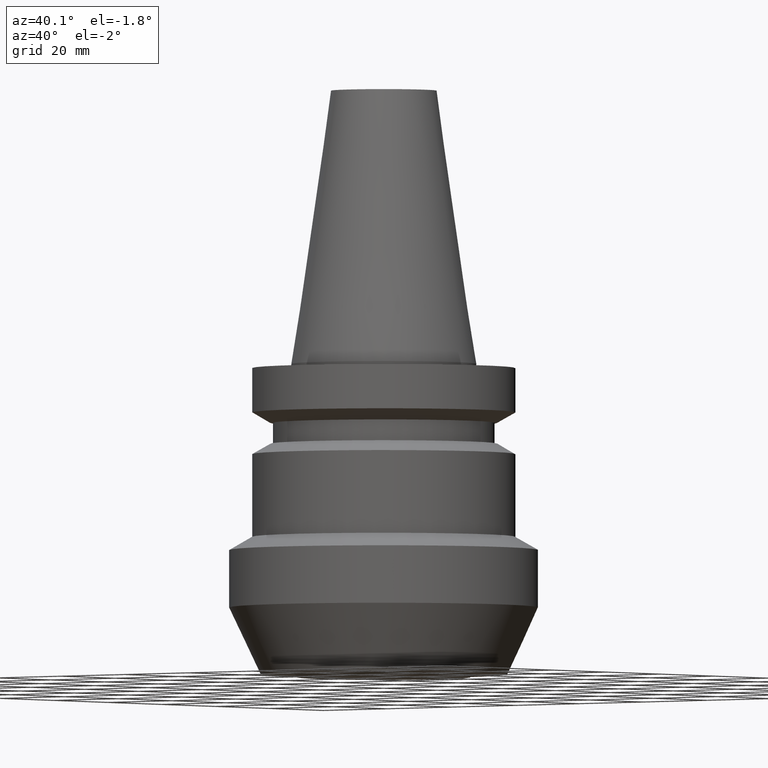
[diagram: clean part render]
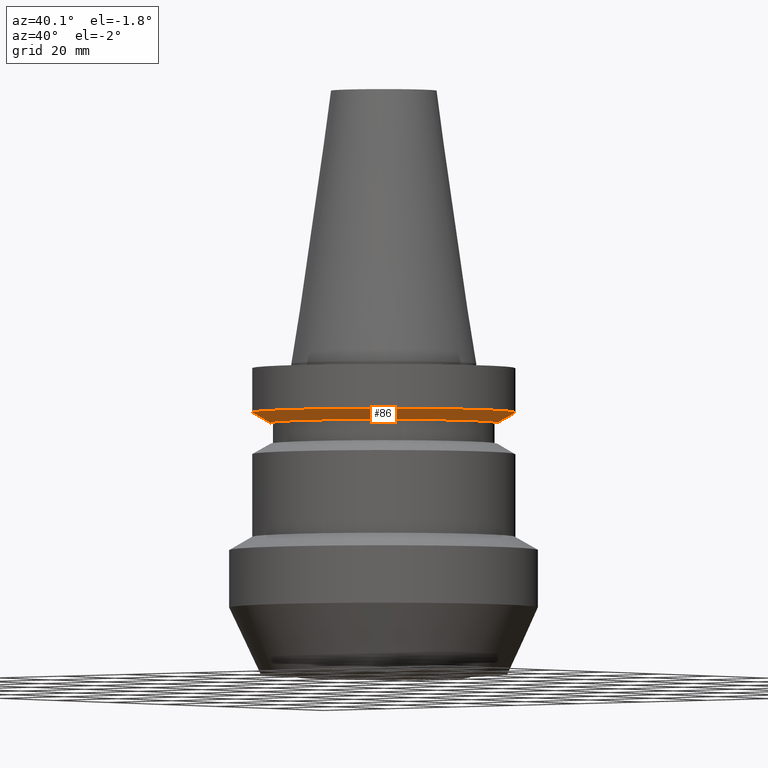
[diagram: same view with one face highlighted and labeled with its STEP entity id]
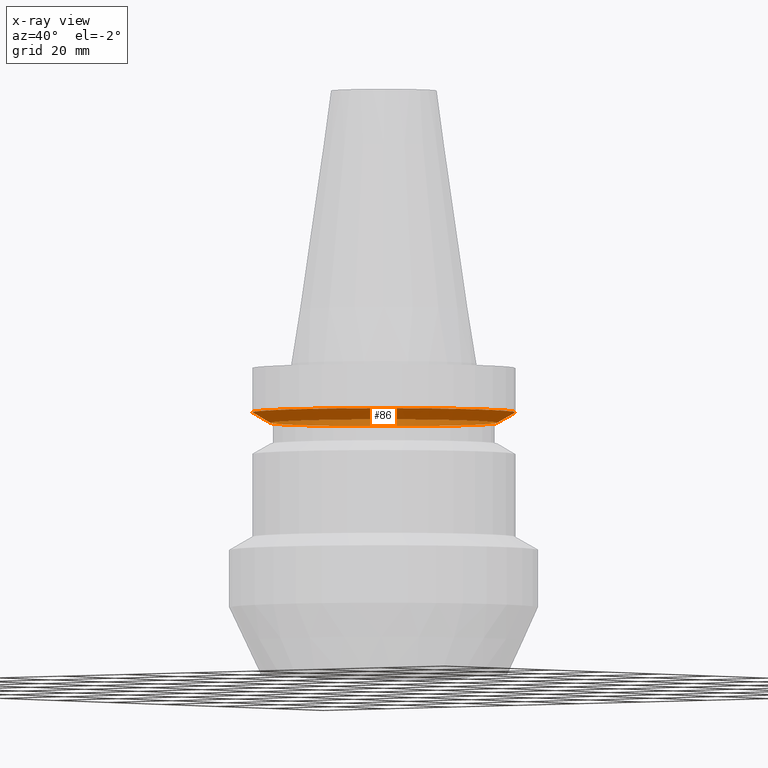
[diagram: x-ray of the same camera — body ghosted, the highlighted face saturated]
A machine part, auxiliary view. The second image highlights one B-rep face of the part: STEP entity #86.
The next image is the same camera in x-ray: the body ghosted, the highlighted face saturated — about 31% of this face is hidden behind the body in this view.
In plain terms, the highlighted conical surface has half-angle 60 deg.
Its self-contained STEP definition (entity closure, byte-faithful):
#86=ADVANCED_FACE('',(#125,#126),#127,.T.);
#125=FACE_BOUND('',#174,.T.);
#126=FACE_BOUND('',#175,.T.);
#127=CONICAL_SURFACE('',#176,29.3350635094623,1.04719755119656);
#174=EDGE_LOOP('',(#245));
#175=EDGE_LOOP('',(#246));
#176=AXIS2_PLACEMENT_3D('',#247,#248,#249);
#245=ORIENTED_EDGE('',*,*,#285,.F.);
#246=ORIENTED_EDGE('',*,*,#284,.T.);
#247=CARTESIAN_POINT('',(7.86866578912746E-016,2.92292206720062E-016,-12.850506439254));
#248=DIRECTION('',(-6.12323399573677E-017,-2.27455787911074E-017,1.0));
#249=DIRECTION('',(-6.21991774383539E-033,1.0,2.27455787911074E-017));
#284=EDGE_CURVE('',#310,#310,#311,.T.);
#285=EDGE_CURVE('',#312,#312,#313,.T.);
#310=VERTEX_POINT('',#342);
#311=CIRCLE('',#343,27.1701270189233);
#312=VERTEX_POINT('',#344);
#313=CIRCLE('',#345,31.5000000000013);
#342=CARTESIAN_POINT('',(8.63402513422008E-016,27.1701270189233,-14.1004331048453));
#343=AXIS2_PLACEMENT_3D('',#384,#385,#386);
#344=CARTESIAN_POINT('',(7.10330644403484E-016,31.5000000000013,-11.6005797736628));
#345=AXIS2_PLACEMENT_3D('',#387,#388,#389);
#384=CARTESIAN_POINT('',(8.63402513422008E-016,3.20722512175416E-016,-14.1004331048453));
#385=DIRECTION('',(-6.12323399573676E-017,-2.27455787911179E-017,1.0));
#386=DIRECTION('',(-6.21991774383307E-033,1.0,2.27455787911179E-017));
#387=CARTESIAN_POINT('',(7.10330644403484E-016,2.63861901264714E-016,-11.6005797736628));
#388=DIRECTION('',(-6.12323399573677E-017,-2.27455787910984E-017,1.0));
#389=DIRECTION('',(-6.219917743826E-033,1.0,2.27455787910984E-017));